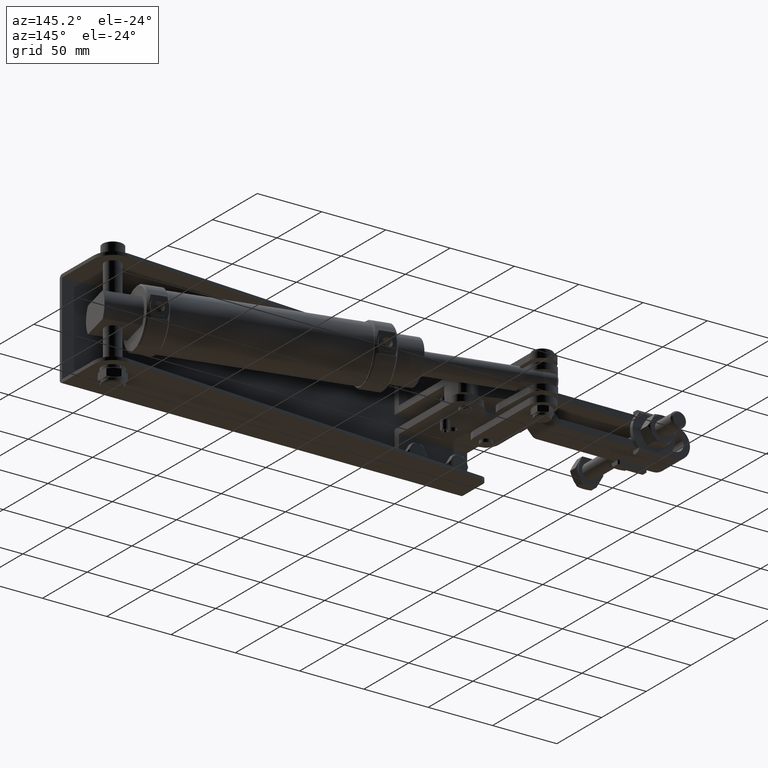
[diagram: clean part render]
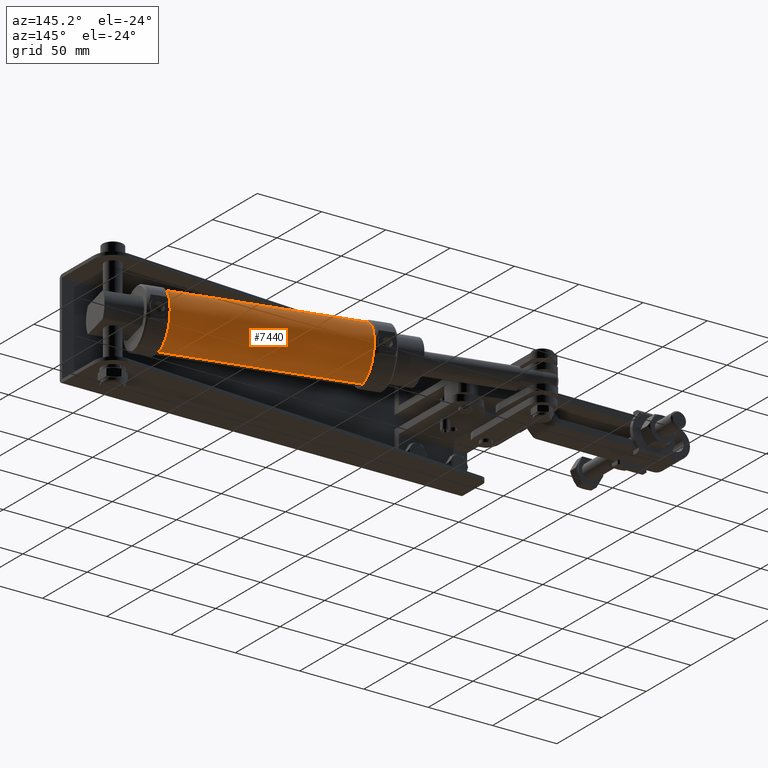
[diagram: same view with one face highlighted and labeled with its STEP entity id]
A machine part, auxiliary view. The second image highlights one B-rep face of the part: STEP entity #7440.
In plain terms, the highlighted cylindrical surface (edge-blend (fillet) strip) has radius 20.825 mm, axis along (0.9717, -0.2364, -0).
Its self-contained STEP definition (entity closure, byte-faithful):
#289 = AXIS2_PLACEMENT_3D ( 'NONE', #5732, #18584, #7598 ) ;
#1514 = CARTESIAN_POINT ( 'NONE',  ( 77.54560281231989900, 75.91925648994379100, 20.82499999999999600 ) ) ;
#3227 = LINE ( 'NONE', #17131, #8085 ) ;
#3317 = VECTOR ( 'NONE', #23719, 1000.000000000000100 ) ;
#3747 = VERTEX_POINT ( 'NONE', #14584 ) ;
#4524 = VERTEX_POINT ( 'NONE', #13343 ) ;
#4531 = AXIS2_PLACEMENT_3D ( 'NONE', #17933, #6961, #19783 ) ;
#5732 = CARTESIAN_POINT ( 'NONE',  ( 213.5784426150960700, 42.82746755080913200, -4.424989741077643400E-015 ) ) ;
#5810 = EDGE_LOOP ( 'NONE', ( #23522, #17531, #10201, #8942 ) ) ;
#6961 = DIRECTION ( 'NONE',  ( 0.9716631414484022700, -0.2363699209938152600, -3.539883030537251300E-017 ) ) ;
#7077 = CYLINDRICAL_SURFACE ( 'NONE', #19498, 20.82499999999999600 ) ;
#7440 = ADVANCED_FACE ( 'NONE', ( #9373 ), #7077, .T. ) ;
#7555 = CARTESIAN_POINT ( 'NONE',  ( 77.54560281231964300, 75.91925648994278200, -20.82499999999999600 ) ) ;
#7598 = DIRECTION ( 'NONE',  ( -5.331202999400512800E-015, -2.399041349730230600E-014, -1.000000000000000000 ) ) ;
#8085 = VECTOR ( 'NONE', #15444, 1000.000000000000100 ) ;
#8210 = CARTESIAN_POINT ( 'NONE',  ( 20.31270543659893900, 89.84191636441445900, 2.615908222826167800E-015 ) ) ;
#8942 = ORIENTED_EDGE ( 'NONE', *, *, #9730, .F. ) ;
#9373 = FACE_OUTER_BOUND ( 'NONE', #5810, .T. ) ;
#9666 = VERTEX_POINT ( 'NONE', #1514 ) ;
#9730 = EDGE_CURVE ( 'NONE', #22628, #4524, #13636, .T. ) ;
#10201 = ORIENTED_EDGE ( 'NONE', *, *, #18156, .F. ) ;
#13343 = CARTESIAN_POINT ( 'NONE',  ( 213.5784426150959200, 42.82746755080862000, -20.82499999999999900 ) ) ;
#13636 = LINE ( 'NONE', #21849, #3317 ) ;
#13747 = DIRECTION ( 'NONE',  ( 0.9716631414484021600, -0.2363699209938154900, -3.539883030537299400E-017 ) ) ;
#14584 = CARTESIAN_POINT ( 'NONE',  ( 213.5784426150961800, 42.82746755080962200, 20.82499999999999200 ) ) ;
#15444 = DIRECTION ( 'NONE',  ( 0.9716631414484020500, -0.2363699209938154600, -3.539883030537298800E-017 ) ) ;
#17131 = CARTESIAN_POINT ( 'NONE',  ( 20.31270543659906400, 89.84191636441497100, 20.82499999999999900 ) ) ;
#17531 = ORIENTED_EDGE ( 'NONE', *, *, #19986, .T. ) ;
#17933 = CARTESIAN_POINT ( 'NONE',  ( 77.54560281231977100, 75.91925648994328000, 5.308465016745748800E-016 ) ) ;
#18156 = EDGE_CURVE ( 'NONE', #4524, #3747, #21899, .T. ) ;
#18584 = DIRECTION ( 'NONE',  ( 0.9716631414484021600, -0.2363699209938154900, -3.539883030537299400E-017 ) ) ;
#19498 = AXIS2_PLACEMENT_3D ( 'NONE', #8210, #13747, #21115 ) ;
#19783 = DIRECTION ( 'NONE',  ( 0.2363699209938151000, 0.9716631414484021600, 0.0000000000000000000 ) ) ;
#19986 = EDGE_CURVE ( 'NONE', #9666, #3747, #3227, .T. ) ;
#20585 = EDGE_CURVE ( 'NONE', #22628, #9666, #23253, .T. ) ;
#21115 = DIRECTION ( 'NONE',  ( -5.831003280594310900E-015, -2.399041349730230600E-014, -1.000000000000000000 ) ) ;
#21849 = CARTESIAN_POINT ( 'NONE',  ( 20.31270543659881500, 89.84191636441396200, -20.82499999999999200 ) ) ;
#21899 = CIRCLE ( 'NONE', #289, 20.82499999999999600 ) ;
#22628 = VERTEX_POINT ( 'NONE', #7555 ) ;
#23253 = CIRCLE ( 'NONE', #4531, 20.82500000000001000 ) ;
#23522 = ORIENTED_EDGE ( 'NONE', *, *, #20585, .T. ) ;
#23719 = DIRECTION ( 'NONE',  ( 0.9716631414484020500, -0.2363699209938154600, -3.539883030537298800E-017 ) ) ;